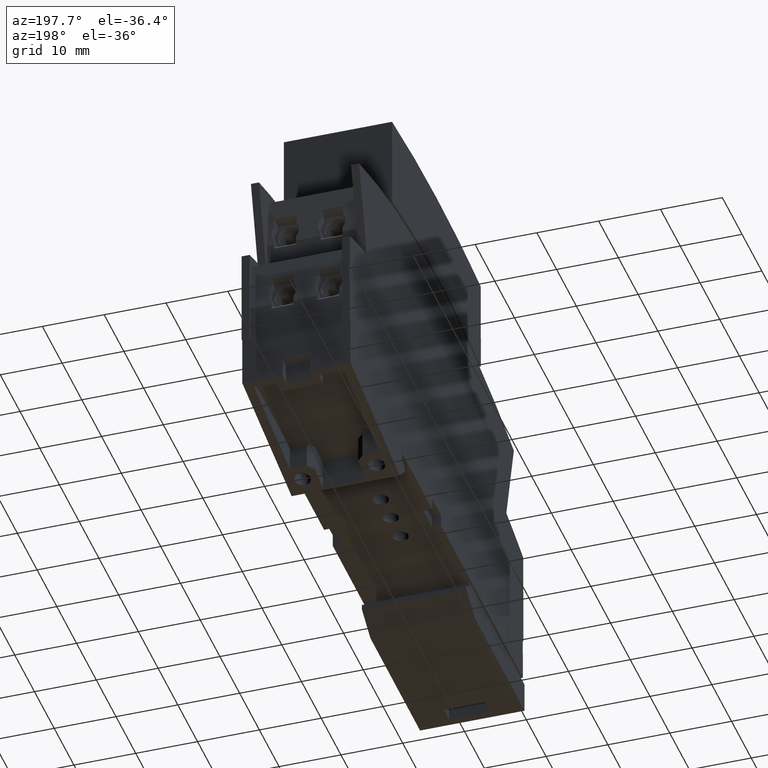
[diagram: clean part render]
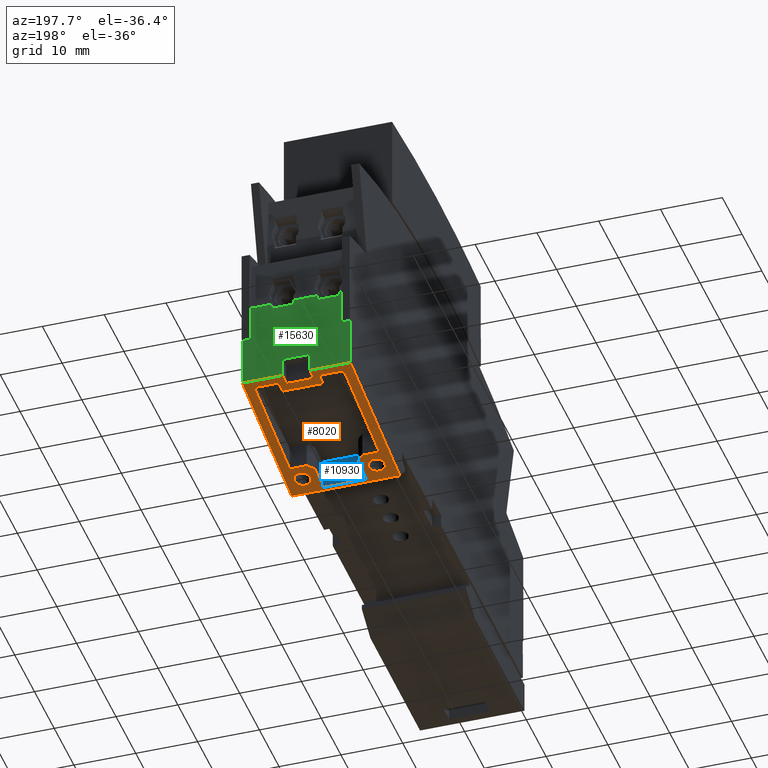
[diagram: same view with three faces highlighted in distinct colors, each labeled with its STEP entity id]
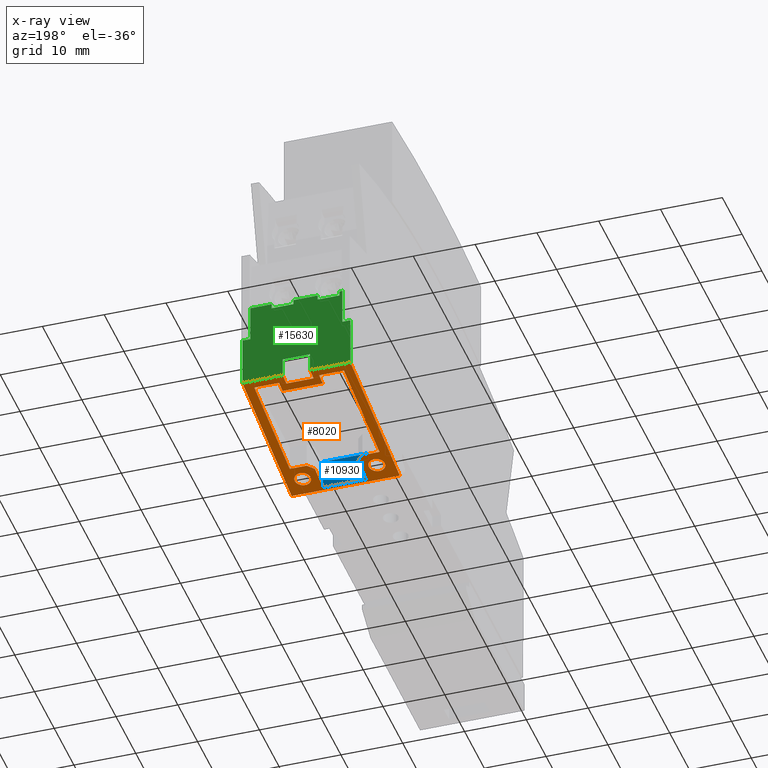
[diagram: x-ray of the same camera — body ghosted, the three highlighted faces saturated]
A machine part, auxiliary view with three faces highlighted in distinct colors.
The next image is the same camera in x-ray (body ghosted, the three faces saturated) — at least one of them is partly hidden behind the body in this view.
Their STEP definitions:

[orange] entity #8020 — the highlighted planar face has unit normal (0, -0.1599, 0.9871).
#540=CARTESIAN_POINT('',(26.1904821930108,-1.05252887462851,17.5));
#550=VERTEX_POINT('',#540);
#580=CARTESIAN_POINT('',(-17.5000000000001,-8.12826523943541,17.5));
#590=DIRECTION('',(0.98713832480494,0.159868470003616,0.));
#600=VECTOR('',#590,1.);
#610=LINE('',#580,#600);
#620=CARTESIAN_POINT('',(1.14413399908864,-5.10882095074802,17.5));
#630=VERTEX_POINT('',#620);
#640=EDGE_CURVE('',#630,#550,#610,.T.);
#5420=CARTESIAN_POINT('',(24.3899705208612,-1.34412432687385,6.55));
#5430=VERTEX_POINT('',#5420);
#5460=CARTESIAN_POINT('',(24.3899705208612,-1.34412432687385,0.));
#5470=DIRECTION('',(-2.38570221992655E-18,-3.84173051003171E-19,-1.));
#5480=VECTOR('',#5470,1.);
#5490=LINE('',#5460,#5480);
#5500=CARTESIAN_POINT('',(24.3899705208612,-1.34412432687385,10.95));
#5510=VERTEX_POINT('',#5500);
#5520=EDGE_CURVE('',#5510,#5430,#5490,.T.);
#5750=CARTESIAN_POINT('',(-17.5000000000001,-8.12826523943541,6.55));
#5760=DIRECTION('',(-0.98713832480494,-0.159868470003616,0.));
#5770=VECTOR('',#5760,1.);
#5780=LINE('',#5750,#5770);
#5790=CARTESIAN_POINT('',(26.1904821930108,-1.05252887462852,6.55));
#5800=VERTEX_POINT('',#5790);
#5810=EDGE_CURVE('',#5800,#5430,#5780,.T.);
#6080=CARTESIAN_POINT('',(1.1441339990885,-5.10882095074805,
-3.5527136788005E-15));
#6090=DIRECTION('',(-0.159868470003616,0.98713832480494,
2.1666217814152E-21));
#6100=DIRECTION('',(-0.98713832480494,-0.159868470003616,
1.33782189539594E-20));
#6110=AXIS2_PLACEMENT_3D('',#6080,#6090,#6100);
#6120=PLANE('',#6110);
#6130=CARTESIAN_POINT('',(4.1842284222937,-4.61647329096047,14.75));
#6140=DIRECTION('',(-0.159868470003616,0.98713832480494,
2.1666217814152E-21));
#6150=DIRECTION('',(-0.98713832480494,-0.159868470003616,
-1.12186986924905E-17));
#6160=AXIS2_PLACEMENT_3D('',#6130,#6140,#6150);
#6170=ELLIPSE('',#6160,1.31731238502352,1.3);
#6180=CARTESIAN_POINT('',(2.8838588812968,-4.82707000647099,14.75));
#6190=VERTEX_POINT('',#6180);
#6200=CARTESIAN_POINT('',(5.48459796329063,-4.40587657544994,14.75));
#6210=VERTEX_POINT('',#6200);
#6220=EDGE_CURVE('',#6190,#6210,#6170,.T.);
#6230=ORIENTED_EDGE('',*,*,#6220,.T.);
#6240=CARTESIAN_POINT('',(4.98439015900681,-4.48688594804271,
13.7252536690291));
#6250=VERTEX_POINT('',#6240);
#6260=EDGE_CURVE('',#6250,#6190,#6170,.T.);
#6270=ORIENTED_EDGE('',*,*,#6260,.T.);
#6280=EDGE_CURVE('',#6210,#6250,#6170,.T.);
#6290=ORIENTED_EDGE('',*,*,#6280,.T.);
#6300=EDGE_LOOP('',(#6290,#6270,#6230));
#6310=FACE_BOUND('',#6300,.T.);
#6320=CARTESIAN_POINT('',(6.78496750428755,-4.19527985993941,0.));
#6330=DIRECTION('',(2.38672456752879E-18,3.84338621666244E-19,1.));
#6340=VECTOR('',#6330,1.);
#6350=LINE('',#6320,#6340);
#6360=CARTESIAN_POINT('',(6.78496750428756,-4.19527985993942,13.25));
#6370=VERTEX_POINT('',#6360);
#6380=CARTESIAN_POINT('',(6.78496750428755,-4.19527985993942,16.));
#6390=VERTEX_POINT('',#6380);
#6400=EDGE_CURVE('',#6370,#6390,#6350,.T.);
#6410=ORIENTED_EDGE('',*,*,#6400,.T.);
#6420=CARTESIAN_POINT('',(-68.4771667671577,-16.3840906403944,
-61.9907461634869));
#6430=DIRECTION('',(0.702613880714443,0.113789327483883,
0.702414210831583));
#6440=VECTOR('',#6430,1.);
#6450=LINE('',#6420,#6440);
#6460=CARTESIAN_POINT('',(5.78468324198225,-4.35727733340904,12.25));
#6470=VERTEX_POINT('',#6460);
#6480=EDGE_CURVE('',#6470,#6370,#6450,.T.);
#6490=ORIENTED_EDGE('',*,*,#6480,.T.);
#6500=CARTESIAN_POINT('',(-68.4771667671577,-16.3840906403943,12.25));
#6510=DIRECTION('',(0.98713832480494,0.159868470003616,0.));
#6520=VECTOR('',#6510,1.);
#6530=LINE('',#6500,#6520);
#6540=CARTESIAN_POINT('',(1.68351776653043,-5.02146697463455,12.25));
#6550=VERTEX_POINT('',#6540);
#6560=EDGE_CURVE('',#6550,#6470,#6530,.T.);
#6570=ORIENTED_EDGE('',*,*,#6560,.T.);
#6580=CARTESIAN_POINT('',(1.68351776653043,-5.02146697463454,0.));
#6590=DIRECTION('',(2.38672456752879E-18,3.84338621666244E-19,1.));
#6600=VECTOR('',#6590,1.);
#6610=LINE('',#6580,#6600);
#6620=CARTESIAN_POINT('',(1.68351776653043,-5.02146697463455,
5.25000000000002));
#6630=VERTEX_POINT('',#6620);
#6640=EDGE_CURVE('',#6630,#6550,#6610,.T.);
#6650=ORIENTED_EDGE('',*,*,#6640,.T.);
#6660=CARTESIAN_POINT('',(-68.4771667671577,-16.3840906403943,
5.24999999999999));
#6670=DIRECTION('',(-0.98713832480494,-0.159868470003616,
-3.19189119579733E-16));
#6680=VECTOR('',#6670,1.);
#6690=LINE('',#6660,#6680);
#6700=CARTESIAN_POINT('',(5.78468324198222,-4.35727733340906,
5.24999999999999));
#6710=VERTEX_POINT('',#6700);
#6720=EDGE_CURVE('',#6710,#6630,#6690,.T.);
#6730=ORIENTED_EDGE('',*,*,#6720,.T.);
#6740=CARTESIAN_POINT('',(-68.4771667671577,-16.3840906403943,
79.4907461634859));
#6750=DIRECTION('',(-0.702613880714448,-0.113789327483884,
0.702414210831578));
#6760=VECTOR('',#6750,1.);
#6770=LINE('',#6740,#6760);
#6780=CARTESIAN_POINT('',(6.78496750428755,-4.19527985993942,
4.24999999999999));
#6790=VERTEX_POINT('',#6780);
#6800=EDGE_CURVE('',#6790,#6710,#6770,.T.);
#6810=ORIENTED_EDGE('',*,*,#6800,.T.);
#6820=CARTESIAN_POINT('',(6.78496750428754,-4.19527985993941,0.));
#6830=DIRECTION('',(-9.23062124750433E-16,-1.49493432192576E-16,1.));
#6840=VECTOR('',#6830,1.);
#6850=LINE('',#6820,#6840);
#6860=CARTESIAN_POINT('',(6.78496750428754,-4.19527985993942,1.5));
#6870=VERTEX_POINT('',#6860);
#6880=EDGE_CURVE('',#6870,#6790,#6850,.T.);
#6890=ORIENTED_EDGE('',*,*,#6880,.T.);
#6900=CARTESIAN_POINT('',(-68.4771667671577,-16.3840906403943,
1.49999999999999));
#6910=DIRECTION('',(-0.98713832480494,-0.159868470003616,
-1.2490009027033E-16));
#6920=VECTOR('',#6910,1.);
#6930=LINE('',#6900,#6920);
#6940=CARTESIAN_POINT('',(24.7900842257833,-1.279325337486,1.5));
#6950=VERTEX_POINT('',#6940);
#6960=EDGE_CURVE('',#6950,#6870,#6930,.T.);
#6970=ORIENTED_EDGE('',*,*,#6960,.T.);
#6980=CARTESIAN_POINT('',(24.7900842257833,-1.279325337486,0.));
#6990=DIRECTION('',(-2.38672456752879E-18,-3.84338621666244E-19,-1.));
#7000=VECTOR('',#6990,1.);
#7010=LINE('',#6980,#7000);
#7020=CARTESIAN_POINT('',(24.7900842257833,-1.279325337486,
5.50000000000001));
#7030=VERTEX_POINT('',#7020);
#7040=EDGE_CURVE('',#7030,#6950,#7010,.T.);
#7050=ORIENTED_EDGE('',*,*,#7040,.T.);
#7060=CARTESIAN_POINT('',(-68.4771667671577,-16.3840906403943,
5.49999999999965));
#7070=DIRECTION('',(0.98713832480494,0.159868470003616,
3.81639164714898E-15));
#7080=VECTOR('',#7070,1.);
#7090=LINE('',#7060,#7080);
#7100=CARTESIAN_POINT('',(22.9895725536337,-1.57092078973135,
5.50000000000001));
#7110=VERTEX_POINT('',#7100);
#7120=EDGE_CURVE('',#7110,#7030,#7090,.T.);
#7130=ORIENTED_EDGE('',*,*,#7120,.T.);
#7140=CARTESIAN_POINT('',(22.9895725536337,-1.57092078973134,0.));
#7150=DIRECTION('',(-2.38672456752879E-18,-3.84338621666244E-19,-1.));
#7160=VECTOR('',#7150,1.);
#7170=LINE('',#7140,#7160);
#7180=CARTESIAN_POINT('',(22.9895725536337,-1.57092078973135,12.));
#7190=VERTEX_POINT('',#7180);
#7200=EDGE_CURVE('',#7190,#7110,#7170,.T.);
#7210=ORIENTED_EDGE('',*,*,#7200,.T.);
#7220=CARTESIAN_POINT('',(-68.4771667671577,-16.3840906403943,12.));
#7230=DIRECTION('',(-0.98713832480494,-0.159868470003616,0.));
#7240=VECTOR('',#7230,1.);
#7250=LINE('',#7220,#7240);
#7260=CARTESIAN_POINT('',(24.7900842257833,-1.279325337486,12.));
#7270=VERTEX_POINT('',#7260);
#7280=EDGE_CURVE('',#7270,#7190,#7250,.T.);
#7290=ORIENTED_EDGE('',*,*,#7280,.T.);
#7300=CARTESIAN_POINT('',(24.7900842257833,-1.279325337486,0.));
#7310=DIRECTION('',(-2.38672456752879E-18,-3.84338621666244E-19,-1.));
#7320=VECTOR('',#7310,1.);
#7330=LINE('',#7300,#7320);
#7340=CARTESIAN_POINT('',(24.7900842257833,-1.279325337486,16.));
#7350=VERTEX_POINT('',#7340);
#7360=EDGE_CURVE('',#7350,#7270,#7330,.T.);
#7370=ORIENTED_EDGE('',*,*,#7360,.T.);
#7380=CARTESIAN_POINT('',(-68.4771667671577,-16.3840906403943,16.));
#7390=DIRECTION('',(0.98713832480494,0.159868470003616,
1.2490009027033E-16));
#7400=VECTOR('',#7390,1.);
#7410=LINE('',#7380,#7400);
#7420=EDGE_CURVE('',#6390,#7350,#7410,.T.);
#7430=ORIENTED_EDGE('',*,*,#7420,.T.);
#7440=EDGE_LOOP('',(#7430,#7370,#7290,#7210,#7130,#7050,#6970,#6890,
#6810,#6730,#6650,#6570,#6490,#6410));
#7450=FACE_BOUND('',#7440,.T.);
#7460=CARTESIAN_POINT('',(4.1842284222937,-4.61647329096047,2.75));
#7470=DIRECTION('',(-0.159868470003616,0.98713832480494,
2.1666217814152E-21));
#7480=DIRECTION('',(-0.98713832480494,-0.159868470003616,
-1.12186986924905E-17));
#7490=AXIS2_PLACEMENT_3D('',#7460,#7470,#7480);
#7500=ELLIPSE('',#7490,1.31731238502352,1.3);
#7510=CARTESIAN_POINT('',(5.48459796329063,-4.40587657544994,2.75));
#7520=VERTEX_POINT('',#7510);
#7530=CARTESIAN_POINT('',(2.8838588812968,-4.82707000647099,2.75));
#7540=VERTEX_POINT('',#7530);
#7550=EDGE_CURVE('',#7520,#7540,#7500,.T.);
#7560=ORIENTED_EDGE('',*,*,#7550,.T.);
#7570=CARTESIAN_POINT('',(4.98439015900682,-4.48688594804271,
3.77474633097094));
#7580=VERTEX_POINT('',#7570);
#7590=EDGE_CURVE('',#7580,#7520,#7500,.T.);
#7600=ORIENTED_EDGE('',*,*,#7590,.T.);
#7610=EDGE_CURVE('',#7540,#7580,#7500,.T.);
#7620=ORIENTED_EDGE('',*,*,#7610,.T.);
#7630=EDGE_LOOP('',(#7620,#7600,#7560));
#7640=FACE_BOUND('',#7630,.T.);
#7650=CARTESIAN_POINT('',(26.1904821930108,-1.05252887462852,17.5));
#7660=DIRECTION('',(-2.39781642213227E-18,-3.86134963455841E-19,-1.));
#7670=VECTOR('',#7660,1.);
#7680=LINE('',#7650,#7670);
#7690=CARTESIAN_POINT('',(26.1904821930108,-1.05252887462852,10.95));
#7700=VERTEX_POINT('',#7690);
#7710=EDGE_CURVE('',#550,#7700,#7680,.T.);
#7720=ORIENTED_EDGE('',*,*,#7710,.F.);
#7730=CARTESIAN_POINT('',(-17.5000000000001,-8.12826523943541,10.95));
#7740=DIRECTION('',(0.98713832480494,0.159868470003616,0.));
#7750=VECTOR('',#7740,1.);
#7760=LINE('',#7730,#7750);
#7770=EDGE_CURVE('',#5510,#7700,#7760,.T.);
#7780=ORIENTED_EDGE('',*,*,#7770,.T.);
#7790=ORIENTED_EDGE('',*,*,#5520,.F.);
#7800=ORIENTED_EDGE('',*,*,#5810,.T.);
#7810=CARTESIAN_POINT('',(26.1904821930108,-1.05252887462851,0.));
#7820=VERTEX_POINT('',#7810);
#7830=EDGE_CURVE('',#5800,#7820,#7680,.T.);
#7840=ORIENTED_EDGE('',*,*,#7830,.F.);
#7850=CARTESIAN_POINT('',(-17.5000000000001,-8.12826523943541,0.));
#7860=DIRECTION('',(-0.98713832480494,-0.159868470003616,0.));
#7870=VECTOR('',#7860,1.);
#7880=LINE('',#7850,#7870);
#7890=CARTESIAN_POINT('',(1.14413399908865,-5.10882095074802,0.));
#7900=VERTEX_POINT('',#7890);
#7910=EDGE_CURVE('',#7820,#7900,#7880,.T.);
#7920=ORIENTED_EDGE('',*,*,#7910,.F.);
#7930=CARTESIAN_POINT('',(1.1441339990885,-5.10882095074804,0.));
#7940=DIRECTION('',(1.35525271560688E-20,-2.95823043372963E-31,1.));
#7950=VECTOR('',#7940,1.);
#7960=LINE('',#7930,#7950);
#7970=EDGE_CURVE('',#7900,#630,#7960,.T.);
#7980=ORIENTED_EDGE('',*,*,#7970,.F.);
#7990=ORIENTED_EDGE('',*,*,#640,.F.);
#8000=EDGE_LOOP('',(#7990,#7980,#7920,#7840,#7800,#7790,#7780,#7720));
#8010=FACE_OUTER_BOUND('',#8000,.T.);
#8020=ADVANCED_FACE('',(#6310,#7450,#7640,#8010),#6120,.F.);

[blue] entity #10930 — the highlighted planar face has unit normal (0, -1, 0.0017).
#6540=CARTESIAN_POINT('',(1.68351776653043,-5.02146697463455,12.25));
#6550=VERTEX_POINT('',#6540);
#6580=CARTESIAN_POINT('',(1.68351776653043,-5.02146697463454,0.));
#6590=DIRECTION('',(2.38672456752879E-18,3.84338621666244E-19,1.));
#6600=VECTOR('',#6590,1.);
#6610=LINE('',#6580,#6600);
#6620=CARTESIAN_POINT('',(1.68351776653043,-5.02146697463455,
5.25000000000002));
#6630=VERTEX_POINT('',#6620);
#6640=EDGE_CURVE('',#6630,#6550,#6610,.T.);
#9400=CARTESIAN_POINT('',(1.69209030416451,-0.10976970044203,
5.25000000000002));
#9410=VERTEX_POINT('',#9400);
#9440=CARTESIAN_POINT('',(1.69209030416451,-0.109769700442033,94.));
#9450=DIRECTION('',(-2.38287876757461E-18,1.81914020319758E-18,-1.));
#9460=VECTOR('',#9450,1.);
#9470=LINE('',#9440,#9460);
#9480=CARTESIAN_POINT('',(1.69209030416451,-0.109769700442033,12.25));
#9490=VERTEX_POINT('',#9480);
#9500=EDGE_CURVE('',#9490,#9410,#9470,.T.);
#10410=CARTESIAN_POINT('',(1.69209030416451,-0.109769700442033,12.25));
#10420=DIRECTION('',(-0.00174532836589892,-0.999998476913288,
-1.81497648306798E-18));
#10430=VECTOR('',#10420,1.);
#10440=LINE('',#10410,#10430);
#10450=EDGE_CURVE('',#9490,#6550,#10440,.T.);
#10770=CARTESIAN_POINT('',(1.69209030416451,-0.10976970044203,
5.25000000000002));
#10780=DIRECTION('',(-0.999998476913288,0.00174532836589892,
2.38605013524181E-18));
#10790=DIRECTION('',(2.38287876757461E-18,-1.81914020319758E-18,1.));
#10800=AXIS2_PLACEMENT_3D('',#10770,#10780,#10790);
#10810=PLANE('',#10800);
#10820=ORIENTED_EDGE('',*,*,#10450,.T.);
#10830=ORIENTED_EDGE('',*,*,#9500,.F.);
#10840=CARTESIAN_POINT('',(1.69209030416451,-0.10976970044203,
5.25000000000002));
#10850=DIRECTION('',(-0.00174532836589892,-0.999998476913288,
-1.81497648306798E-18));
#10860=VECTOR('',#10850,1.);
#10870=LINE('',#10840,#10860);
#10880=EDGE_CURVE('',#9410,#6630,#10870,.T.);
#10890=ORIENTED_EDGE('',*,*,#10880,.F.);
#10900=ORIENTED_EDGE('',*,*,#6640,.F.);
#10910=EDGE_LOOP('',(#10900,#10890,#10830,#10820));
#10920=FACE_OUTER_BOUND('',#10910,.T.);
#10930=ADVANCED_FACE('',(#10920),#10810,.F.);

[green] entity #15630 — the highlighted planar face has unit normal (-0, 1, -0.0017).
#460=CARTESIAN_POINT('',(26.2046194104581,7.04749183856525,17.5));
#470=VERTEX_POINT('',#460);
#500=CARTESIAN_POINT('',(26.2340499502381,23.9099318984209,17.5));
#510=DIRECTION('',(0.00174532836589978,0.999998476913288,0.));
#520=VECTOR('',#510,1.);
#530=LINE('',#500,#520);
#540=CARTESIAN_POINT('',(26.1904821930108,-1.05252887462851,17.5));
#550=VERTEX_POINT('',#540);
#560=EDGE_CURVE('',#550,#470,#530,.T.);
#5790=CARTESIAN_POINT('',(26.1904821930108,-1.05252887462852,6.55));
#5800=VERTEX_POINT('',#5790);
#5880=CARTESIAN_POINT('',(26.1958098663579,2.00000000000001,6.55));
#5890=VERTEX_POINT('',#5880);
#5920=CARTESIAN_POINT('',(26.2340499502381,23.9099318984209,6.55));
#5930=DIRECTION('',(-0.00174532836589978,-0.999998476913288,
-1.73472347597681E-18));
#5940=VECTOR('',#5930,1.);
#5950=LINE('',#5920,#5940);
#5960=EDGE_CURVE('',#5890,#5800,#5950,.T.);
#7650=CARTESIAN_POINT('',(26.1904821930108,-1.05252887462852,17.5));
#7660=DIRECTION('',(-2.39781642213227E-18,-3.86134963455841E-19,-1.));
#7670=VECTOR('',#7660,1.);
#7680=LINE('',#7650,#7670);
#7690=CARTESIAN_POINT('',(26.1904821930108,-1.05252887462852,10.95));
#7700=VERTEX_POINT('',#7690);
#7710=EDGE_CURVE('',#550,#7700,#7680,.T.);
#7810=CARTESIAN_POINT('',(26.1904821930108,-1.05252887462851,0.));
#7820=VERTEX_POINT('',#7810);
#7830=EDGE_CURVE('',#5800,#7820,#7680,.T.);
#14090=CARTESIAN_POINT('',(26.2046193527746,7.04745878836913,0.));
#14100=VERTEX_POINT('',#14090);
#14130=CARTESIAN_POINT('',(26.2046193527746,7.04745878836913,17.5));
#14140=DIRECTION('',(2.39396746971493E-18,-1.8191500879132E-18,1.));
#14150=VECTOR('',#14140,1.);
#14160=LINE('',#14130,#14150);
#14170=CARTESIAN_POINT('',(26.2046193527746,7.04745878836913,
1.29999999999997));
#14180=VERTEX_POINT('',#14170);
#14190=EDGE_CURVE('',#14100,#14180,#14160,.T.);
#14450=CARTESIAN_POINT('',(26.2149167901334,12.9474498021573,
1.29999999999997));
#14460=DIRECTION('',(0.999998476913288,-0.00174532836589978,
-2.39713883774515E-18));
#14470=DIRECTION('',(-0.00174532836589978,-0.999998476913288,
-6.93022030278138E-16));
#14480=AXIS2_PLACEMENT_3D('',#14450,#14460,#14470);
#14490=PLANE('',#14480);
#14500=ORIENTED_EDGE('',*,*,#14190,.T.);
#14510=CARTESIAN_POINT('',(26.2340499502381,23.9099318984209,0.));
#14520=DIRECTION('',(0.00174532836589978,0.999998476913288,0.));
#14530=VECTOR('',#14520,1.);
#14540=LINE('',#14510,#14530);
#14550=EDGE_CURVE('',#7820,#14100,#14540,.T.);
#14560=ORIENTED_EDGE('',*,*,#14550,.T.);
#14570=ORIENTED_EDGE('',*,*,#7830,.T.);
#14580=ORIENTED_EDGE('',*,*,#5960,.T.);
#14590=CARTESIAN_POINT('',(26.1958098663579,2.00000000000001,17.5));
#14600=DIRECTION('',(2.39714248880103E-18,0.,1.));
#14610=VECTOR('',#14600,1.);
#14620=LINE('',#14590,#14610);
#14630=CARTESIAN_POINT('',(26.1958098663579,2.00000000000001,10.95));
#14640=VERTEX_POINT('',#14630);
#14650=EDGE_CURVE('',#5890,#14640,#14620,.T.);
#14660=ORIENTED_EDGE('',*,*,#14650,.F.);
#14670=CARTESIAN_POINT('',(26.2340499502381,23.9099318984209,10.95));
#14680=DIRECTION('',(0.00174532836589978,0.999998476913288,
1.73472347597681E-18));
#14690=VECTOR('',#14680,1.);
#14700=LINE('',#14670,#14690);
#14710=EDGE_CURVE('',#7700,#14640,#14700,.T.);
#14720=ORIENTED_EDGE('',*,*,#14710,.T.);
#14730=ORIENTED_EDGE('',*,*,#7710,.T.);
#14740=ORIENTED_EDGE('',*,*,#560,.F.);
#14750=CARTESIAN_POINT('',(26.2046194104581,7.04749183856525,17.5));
#14760=DIRECTION('',(-5.89659356178375E-19,1.03561049885145E-15,-1.));
#14770=VECTOR('',#14760,1.);
#14780=LINE('',#14750,#14770);
#14790=CARTESIAN_POINT('',(26.2046194104581,7.04749183856525,16.2));
#14800=VERTEX_POINT('',#14790);
#14810=EDGE_CURVE('',#470,#14800,#14780,.T.);
#14820=ORIENTED_EDGE('',*,*,#14810,.F.);
#14830=CARTESIAN_POINT('',(26.2340499502381,23.9099318984209,16.2));
#14840=DIRECTION('',(0.00174532836589978,0.999998476913288,
1.03389519168218E-15));
#14850=VECTOR('',#14840,1.);
#14860=LINE('',#14830,#14850);
#14870=CARTESIAN_POINT('',(26.2149167901334,12.9474498021574,16.2));
#14880=VERTEX_POINT('',#14870);
#14890=EDGE_CURVE('',#14800,#14880,#14860,.T.);
#14900=ORIENTED_EDGE('',*,*,#14890,.F.);
#14910=CARTESIAN_POINT('',(26.2149167901334,12.9474498021575,0.));
#14920=DIRECTION('',(1.18758417905696E-18,-6.93025158539903E-16,1.));
#14930=VECTOR('',#14920,1.);
#14940=LINE('',#14910,#14930);
#14950=CARTESIAN_POINT('',(26.2149167901333,12.9474498021578,12.75));
#14960=VERTEX_POINT('',#14950);
#14970=EDGE_CURVE('',#14960,#14880,#14940,.T.);
#14980=ORIENTED_EDGE('',*,*,#14970,.T.);
#14990=CARTESIAN_POINT('',(26.2340499502381,23.9099318984209,12.75));
#15000=DIRECTION('',(0.00174532836589978,0.999998476913288,
-2.1391308863139E-16));
#15010=VECTOR('',#15000,1.);
#15020=LINE('',#14990,#15010);
#15030=CARTESIAN_POINT('',(26.2135903405753,12.1874509597033,12.75));
#15040=VERTEX_POINT('',#15030);
#15050=EDGE_CURVE('',#15040,#14960,#15020,.T.);
#15060=ORIENTED_EDGE('',*,*,#15050,.T.);
#15070=CARTESIAN_POINT('',(26.2135903405753,12.1874509597033,17.5));
#15080=DIRECTION('',(-1.92603793320327E-18,2.69922753373569E-16,-1.));
#15090=VECTOR('',#15080,1.);
#15100=LINE('',#15070,#15090);
#15110=CARTESIAN_POINT('',(26.2135903405753,12.1874509597033,9.25));
#15120=VERTEX_POINT('',#15110);
#15130=EDGE_CURVE('',#15040,#15120,#15100,.T.);
#15140=ORIENTED_EDGE('',*,*,#15130,.F.);
#15150=CARTESIAN_POINT('',(26.2340499502381,23.9099318984209,9.25));
#15160=DIRECTION('',(-0.00174532836589978,-0.999998476913288,
2.1391308863139E-16));
#15170=VECTOR('',#15160,1.);
#15180=LINE('',#15150,#15170);
#15190=CARTESIAN_POINT('',(26.2149167901333,12.9474498021578,9.25));
#15200=VERTEX_POINT('',#15190);
#15210=EDGE_CURVE('',#15200,#15120,#15180,.T.);
#15220=ORIENTED_EDGE('',*,*,#15210,.T.);
#15230=CARTESIAN_POINT('',(26.2149167901333,12.9474498021578,5.3));
#15240=VERTEX_POINT('',#15230);
#15250=EDGE_CURVE('',#15240,#15200,#14940,.T.);
#15260=ORIENTED_EDGE('',*,*,#15250,.T.);
#15270=CARTESIAN_POINT('',(26.2340499502381,23.9099318984209,
5.29999999999999));
#15280=DIRECTION('',(0.00174532836589978,0.999998476913288,
-2.1391308863139E-16));
#15290=VECTOR('',#15280,1.);
#15300=LINE('',#15270,#15290);
#15310=CARTESIAN_POINT('',(26.2135903405753,12.1874509597033,
5.29999999999999));
#15320=VERTEX_POINT('',#15310);
#15330=EDGE_CURVE('',#15320,#15240,#15300,.T.);
#15340=ORIENTED_EDGE('',*,*,#15330,.T.);
#15350=CARTESIAN_POINT('',(26.2135903405753,12.1874509597033,17.5));
#15360=DIRECTION('',(1.53414731207069E-18,2.2524608491936E-15,-1.));
#15370=VECTOR('',#15360,1.);
#15380=LINE('',#15350,#15370);
#15390=CARTESIAN_POINT('',(26.2135903405753,12.1874509597033,
1.79999999999999));
#15400=VERTEX_POINT('',#15390);
#15410=EDGE_CURVE('',#15320,#15400,#15380,.T.);
#15420=ORIENTED_EDGE('',*,*,#15410,.F.);
#15430=CARTESIAN_POINT('',(26.2340499502381,23.9099318984209,
1.79999999999999));
#15440=DIRECTION('',(-0.00174532836589978,-0.999998476913288,
2.1391308863139E-16));
#15450=VECTOR('',#15440,1.);
#15460=LINE('',#15430,#15450);
#15470=CARTESIAN_POINT('',(26.2149167901333,12.9474498021578,
1.79999999999999));
#15480=VERTEX_POINT('',#15470);
#15490=EDGE_CURVE('',#15480,#15400,#15460,.T.);
#15500=ORIENTED_EDGE('',*,*,#15490,.T.);
#15510=CARTESIAN_POINT('',(26.2149167901334,12.9474498021574,
1.29999999999996));
#15520=VERTEX_POINT('',#15510);
#15530=EDGE_CURVE('',#15520,#15480,#14940,.T.);
#15540=ORIENTED_EDGE('',*,*,#15530,.T.);
#15550=CARTESIAN_POINT('',(26.2340499502381,23.9099318984209,
1.29999999999997));
#15560=DIRECTION('',(-0.00174532836589978,-0.999998476913288,
-6.93022028652734E-16));
#15570=VECTOR('',#15560,1.);
#15580=LINE('',#15550,#15570);
#15590=EDGE_CURVE('',#15520,#14180,#15580,.T.);
#15600=ORIENTED_EDGE('',*,*,#15590,.F.);
#15610=EDGE_LOOP('',(#15600,#15540,#15500,#15420,#15340,#15260,#15220,
#15140,#15060,#14980,#14900,#14820,#14740,#14730,#14720,#14660,#14580,
#14570,#14560,#14500));
#15620=FACE_OUTER_BOUND('',#15610,.T.);
#15630=ADVANCED_FACE('',(#15620),#14490,.T.);